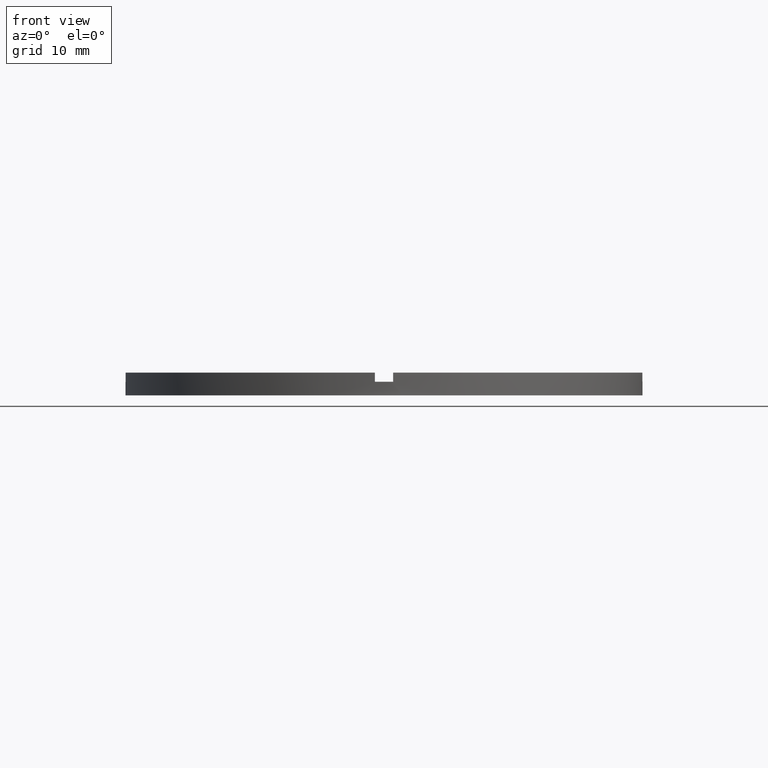
[diagram: clean part render]
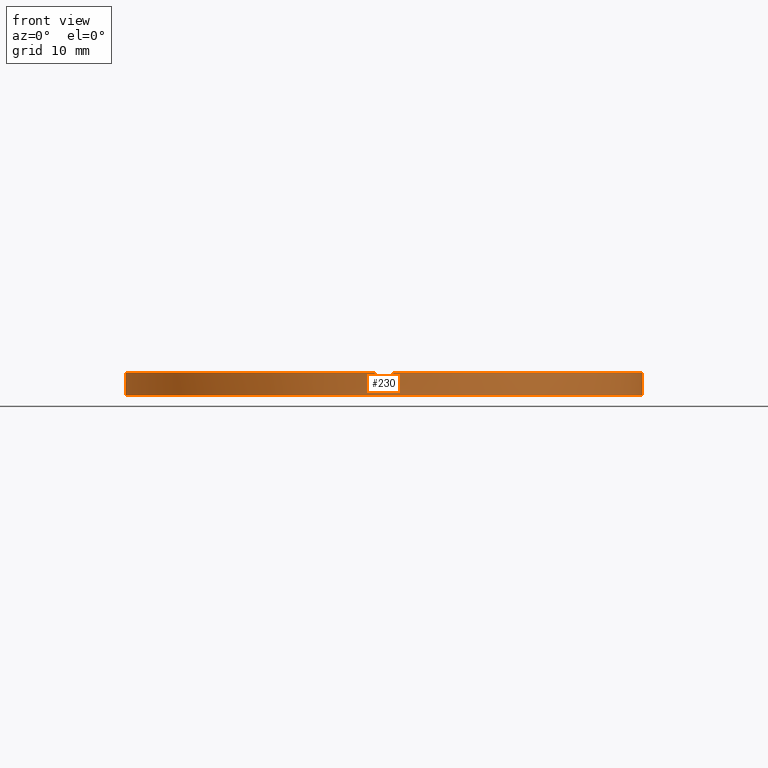
[diagram: same view with one face highlighted and labeled with its STEP entity id]
A machine part, front view. The second image highlights one B-rep face of the part: STEP entity #230.
In plain terms, the highlighted cylindrical surface (partial cylindrical patch) has radius 28.5 mm, axis along (-0, -0, -1).
Its self-contained STEP definition (entity closure, byte-faithful):
#16 = CARTESIAN_POINT ( 'NONE',  ( 0.000000000000000000, 0.000000000000000000, 2.500000000000000000 ) ) ;
#18 = DIRECTION ( 'NONE',  ( -0.000000000000000000, -0.000000000000000000, -1.000000000000000000 ) ) ;
#24 = CARTESIAN_POINT ( 'NONE',  ( -28.48245073725222909, -1.000000000000027089, 1.500000000000000000 ) ) ;
#29 = CARTESIAN_POINT ( 'NONE',  ( 0.000000000000000000, 0.000000000000000000, 0.000000000000000000 ) ) ;
#32 = CARTESIAN_POINT ( 'NONE',  ( -28.48245073725222909, -1.000000000000027089, 2.500000000000000000 ) ) ;
#33 = VERTEX_POINT ( 'NONE', #556 ) ;
#39 = VERTEX_POINT ( 'NONE', #24 ) ;
#47 = ORIENTED_EDGE ( 'NONE', *, *, #624, .T. ) ;
#56 = ORIENTED_EDGE ( 'NONE', *, *, #514, .F. ) ;
#61 = ORIENTED_EDGE ( 'NONE', *, *, #475, .T. ) ;
#73 = ORIENTED_EDGE ( 'NONE', *, *, #383, .F. ) ;
#76 = VERTEX_POINT ( 'NONE', #688 ) ;
#85 = ORIENTED_EDGE ( 'NONE', *, *, #534, .F. ) ;
#101 = VERTEX_POINT ( 'NONE', #312 ) ;
#105 = VERTEX_POINT ( 'NONE', #255 ) ;
#112 = DIRECTION ( 'NONE',  ( -0.000000000000000000, 0.000000000000000000, 1.000000000000000000 ) ) ;
#119 = AXIS2_PLACEMENT_3D ( 'NONE', #480, #672, #251 ) ;
#126 = EDGE_CURVE ( 'NONE', #76, #101, #427, .T. ) ;
#130 = CARTESIAN_POINT ( 'NONE',  ( 0.000000000000000000, 0.000000000000000000, 2.500000000000000000 ) ) ;
#166 = CARTESIAN_POINT ( 'NONE',  ( 0.000000000000000000, 0.000000000000000000, 1.500000000000000000 ) ) ;
#171 = FACE_OUTER_BOUND ( 'NONE', #570, .T. ) ;
#185 = VECTOR ( 'NONE', #658, 1000.000000000000000 ) ;
#186 = VECTOR ( 'NONE', #273, 1000.000000000000000 ) ;
#190 = AXIS2_PLACEMENT_3D ( 'NONE', #519, #112, #731 ) ;
#191 = CIRCLE ( 'NONE', #119, 28.50000000000000000 ) ;
#208 = DIRECTION ( 'NONE',  ( 0.000000000000000000, 0.000000000000000000, 1.000000000000000000 ) ) ;
#217 = LINE ( 'NONE', #416, #756 ) ;
#230 = ADVANCED_FACE ( 'NONE', ( #171 ), #696, .T. ) ;
#248 = CARTESIAN_POINT ( 'NONE',  ( -1.000000000000159650, -28.48245073725222554, 2.500000000000000000 ) ) ;
#251 = DIRECTION ( 'NONE',  ( 1.000000000000000000, 0.000000000000000000, 0.000000000000000000 ) ) ;
#253 = CARTESIAN_POINT ( 'NONE',  ( 0.9999999999998404610, -28.48245073725223264, 1.500000000000000000 ) ) ;
#255 = CARTESIAN_POINT ( 'NONE',  ( -1.000000000000159650, -28.48245073725222554, 1.500000000000000000 ) ) ;
#258 = DIRECTION ( 'NONE',  ( -1.000000000000000000, 0.000000000000000000, 0.000000000000000000 ) ) ;
#265 = DIRECTION ( 'NONE',  ( 0.000000000000000000, 0.000000000000000000, 1.000000000000000000 ) ) ;
#272 = DIRECTION ( 'NONE',  ( -0.000000000000000000, -0.000000000000000000, -1.000000000000000000 ) ) ;
#273 = DIRECTION ( 'NONE',  ( -0.000000000000000000, -0.000000000000000000, -1.000000000000000000 ) ) ;
#279 = CARTESIAN_POINT ( 'NONE',  ( -28.50000000000000000, 0.000000000000000000, 2.500000000000000000 ) ) ;
#288 = CARTESIAN_POINT ( 'NONE',  ( 28.50000000000000000, 3.490243377569956456E-15, 2.500000000000000000 ) ) ;
#296 = DIRECTION ( 'NONE',  ( 1.000000000000000000, 0.000000000000000000, 0.000000000000000000 ) ) ;
#312 = CARTESIAN_POINT ( 'NONE',  ( 28.48245073725222554, -1.000000000000156763, 2.500000000000000000 ) ) ;
#315 = VERTEX_POINT ( 'NONE', #248 ) ;
#320 = CARTESIAN_POINT ( 'NONE',  ( -1.000000000000159650, -28.48245073725222554, 2.500000000000000000 ) ) ;
#326 = ORIENTED_EDGE ( 'NONE', *, *, #530, .T. ) ;
#345 = ORIENTED_EDGE ( 'NONE', *, *, #485, .T. ) ;
#360 = DIRECTION ( 'NONE',  ( 1.000000000000000000, 0.000000000000000000, 0.000000000000000000 ) ) ;
#364 = DIRECTION ( 'NONE',  ( -0.000000000000000000, -0.000000000000000000, -1.000000000000000000 ) ) ;
#367 = EDGE_CURVE ( 'NONE', #105, #315, #702, .T. ) ;
#371 = EDGE_CURVE ( 'NONE', #611, #557, #755, .T. ) ;
#376 = AXIS2_PLACEMENT_3D ( 'NONE', #166, #384, #360 ) ;
#383 = EDGE_CURVE ( 'NONE', #579, #39, #191, .T. ) ;
#384 = DIRECTION ( 'NONE',  ( 0.000000000000000000, 0.000000000000000000, 1.000000000000000000 ) ) ;
#404 = CARTESIAN_POINT ( 'NONE',  ( 28.50000000000000000, 3.490243377569956456E-15, 0.000000000000000000 ) ) ;
#405 = AXIS2_PLACEMENT_3D ( 'NONE', #130, #208, #435 ) ;
#416 = CARTESIAN_POINT ( 'NONE',  ( -28.48245073725222909, -1.000000000000027089, 2.500000000000000000 ) ) ;
#427 = CIRCLE ( 'NONE', #405, 28.50000000000000000 ) ;
#430 = AXIS2_PLACEMENT_3D ( 'NONE', #29, #265, #650 ) ;
#435 = DIRECTION ( 'NONE',  ( 1.000000000000000000, 0.000000000000000000, 0.000000000000000000 ) ) ;
#439 = CARTESIAN_POINT ( 'NONE',  ( 28.50000000000000000, 3.490243377569956456E-15, 1.500000000000000000 ) ) ;
#454 = CIRCLE ( 'NONE', #430, 28.50000000000000000 ) ;
#455 = LINE ( 'NONE', #288, #185 ) ;
#462 = LINE ( 'NONE', #542, #473 ) ;
#463 = CIRCLE ( 'NONE', #516, 28.50000000000000000 ) ;
#473 = VECTOR ( 'NONE', #597, 1000.000000000000000 ) ;
#475 = EDGE_CURVE ( 'NONE', #608, #39, #217, .T. ) ;
#480 = CARTESIAN_POINT ( 'NONE',  ( 0.000000000000000000, 0.000000000000000000, 1.500000000000000000 ) ) ;
#484 = LINE ( 'NONE', #779, #186 ) ;
#485 = EDGE_CURVE ( 'NONE', #579, #33, #751, .T. ) ;
#497 = ORIENTED_EDGE ( 'NONE', *, *, #371, .F. ) ;
#500 = ORIENTED_EDGE ( 'NONE', *, *, #126, .F. ) ;
#514 = EDGE_CURVE ( 'NONE', #557, #596, #455, .T. ) ;
#516 = AXIS2_PLACEMENT_3D ( 'NONE', #16, #685, #296 ) ;
#519 = CARTESIAN_POINT ( 'NONE',  ( 0.000000000000000000, 0.000000000000000000, 1.500000000000000000 ) ) ;
#530 = EDGE_CURVE ( 'NONE', #611, #101, #462, .T. ) ;
#534 = EDGE_CURVE ( 'NONE', #608, #315, #463, .T. ) ;
#542 = CARTESIAN_POINT ( 'NONE',  ( 28.48245073725222554, -1.000000000000156763, 2.500000000000000000 ) ) ;
#546 = CARTESIAN_POINT ( 'NONE',  ( -28.50000000000000000, 0.000000000000000000, 1.500000000000000000 ) ) ;
#556 = CARTESIAN_POINT ( 'NONE',  ( -28.50000000000000000, 0.000000000000000000, 0.000000000000000000 ) ) ;
#557 = VERTEX_POINT ( 'NONE', #439 ) ;
#558 = VERTEX_POINT ( 'NONE', #253 ) ;
#562 = DIRECTION ( 'NONE',  ( 0.000000000000000000, 0.000000000000000000, 1.000000000000000000 ) ) ;
#565 = CARTESIAN_POINT ( 'NONE',  ( 28.48245073725222554, -1.000000000000156763, 1.500000000000000000 ) ) ;
#566 = ORIENTED_EDGE ( 'NONE', *, *, #367, .T. ) ;
#570 = EDGE_LOOP ( 'NONE', ( #56, #497, #326, #500, #583, #607, #566, #85, #61, #73, #345, #47 ) ) ;
#579 = VERTEX_POINT ( 'NONE', #546 ) ;
#583 = ORIENTED_EDGE ( 'NONE', *, *, #673, .T. ) ;
#596 = VERTEX_POINT ( 'NONE', #404 ) ;
#597 = DIRECTION ( 'NONE',  ( 0.000000000000000000, 0.000000000000000000, 1.000000000000000000 ) ) ;
#607 = ORIENTED_EDGE ( 'NONE', *, *, #660, .F. ) ;
#608 = VERTEX_POINT ( 'NONE', #32 ) ;
#611 = VERTEX_POINT ( 'NONE', #565 ) ;
#624 = EDGE_CURVE ( 'NONE', #33, #596, #454, .T. ) ;
#650 = DIRECTION ( 'NONE',  ( 1.000000000000000000, 0.000000000000000000, 0.000000000000000000 ) ) ;
#658 = DIRECTION ( 'NONE',  ( -0.000000000000000000, -0.000000000000000000, -1.000000000000000000 ) ) ;
#660 = EDGE_CURVE ( 'NONE', #105, #558, #735, .T. ) ;
#664 = AXIS2_PLACEMENT_3D ( 'NONE', #765, #18, #258 ) ;
#672 = DIRECTION ( 'NONE',  ( 0.000000000000000000, 0.000000000000000000, 1.000000000000000000 ) ) ;
#673 = EDGE_CURVE ( 'NONE', #76, #558, #484, .T. ) ;
#685 = DIRECTION ( 'NONE',  ( 0.000000000000000000, 0.000000000000000000, 1.000000000000000000 ) ) ;
#688 = CARTESIAN_POINT ( 'NONE',  ( 0.9999999999998404610, -28.48245073725223264, 2.500000000000000000 ) ) ;
#696 = CYLINDRICAL_SURFACE ( 'NONE', #664, 28.50000000000000000 ) ;
#702 = LINE ( 'NONE', #320, #723 ) ;
#723 = VECTOR ( 'NONE', #562, 1000.000000000000000 ) ;
#731 = DIRECTION ( 'NONE',  ( 1.000000000000000000, 0.000000000000000000, 0.000000000000000000 ) ) ;
#735 = CIRCLE ( 'NONE', #190, 28.50000000000000000 ) ;
#748 = VECTOR ( 'NONE', #272, 1000.000000000000000 ) ;
#751 = LINE ( 'NONE', #279, #748 ) ;
#755 = CIRCLE ( 'NONE', #376, 28.50000000000000000 ) ;
#756 = VECTOR ( 'NONE', #364, 1000.000000000000000 ) ;
#765 = CARTESIAN_POINT ( 'NONE',  ( 0.000000000000000000, 0.000000000000000000, 2.500000000000000000 ) ) ;
#779 = CARTESIAN_POINT ( 'NONE',  ( 0.9999999999998404610, -28.48245073725223264, 2.500000000000000000 ) ) ;